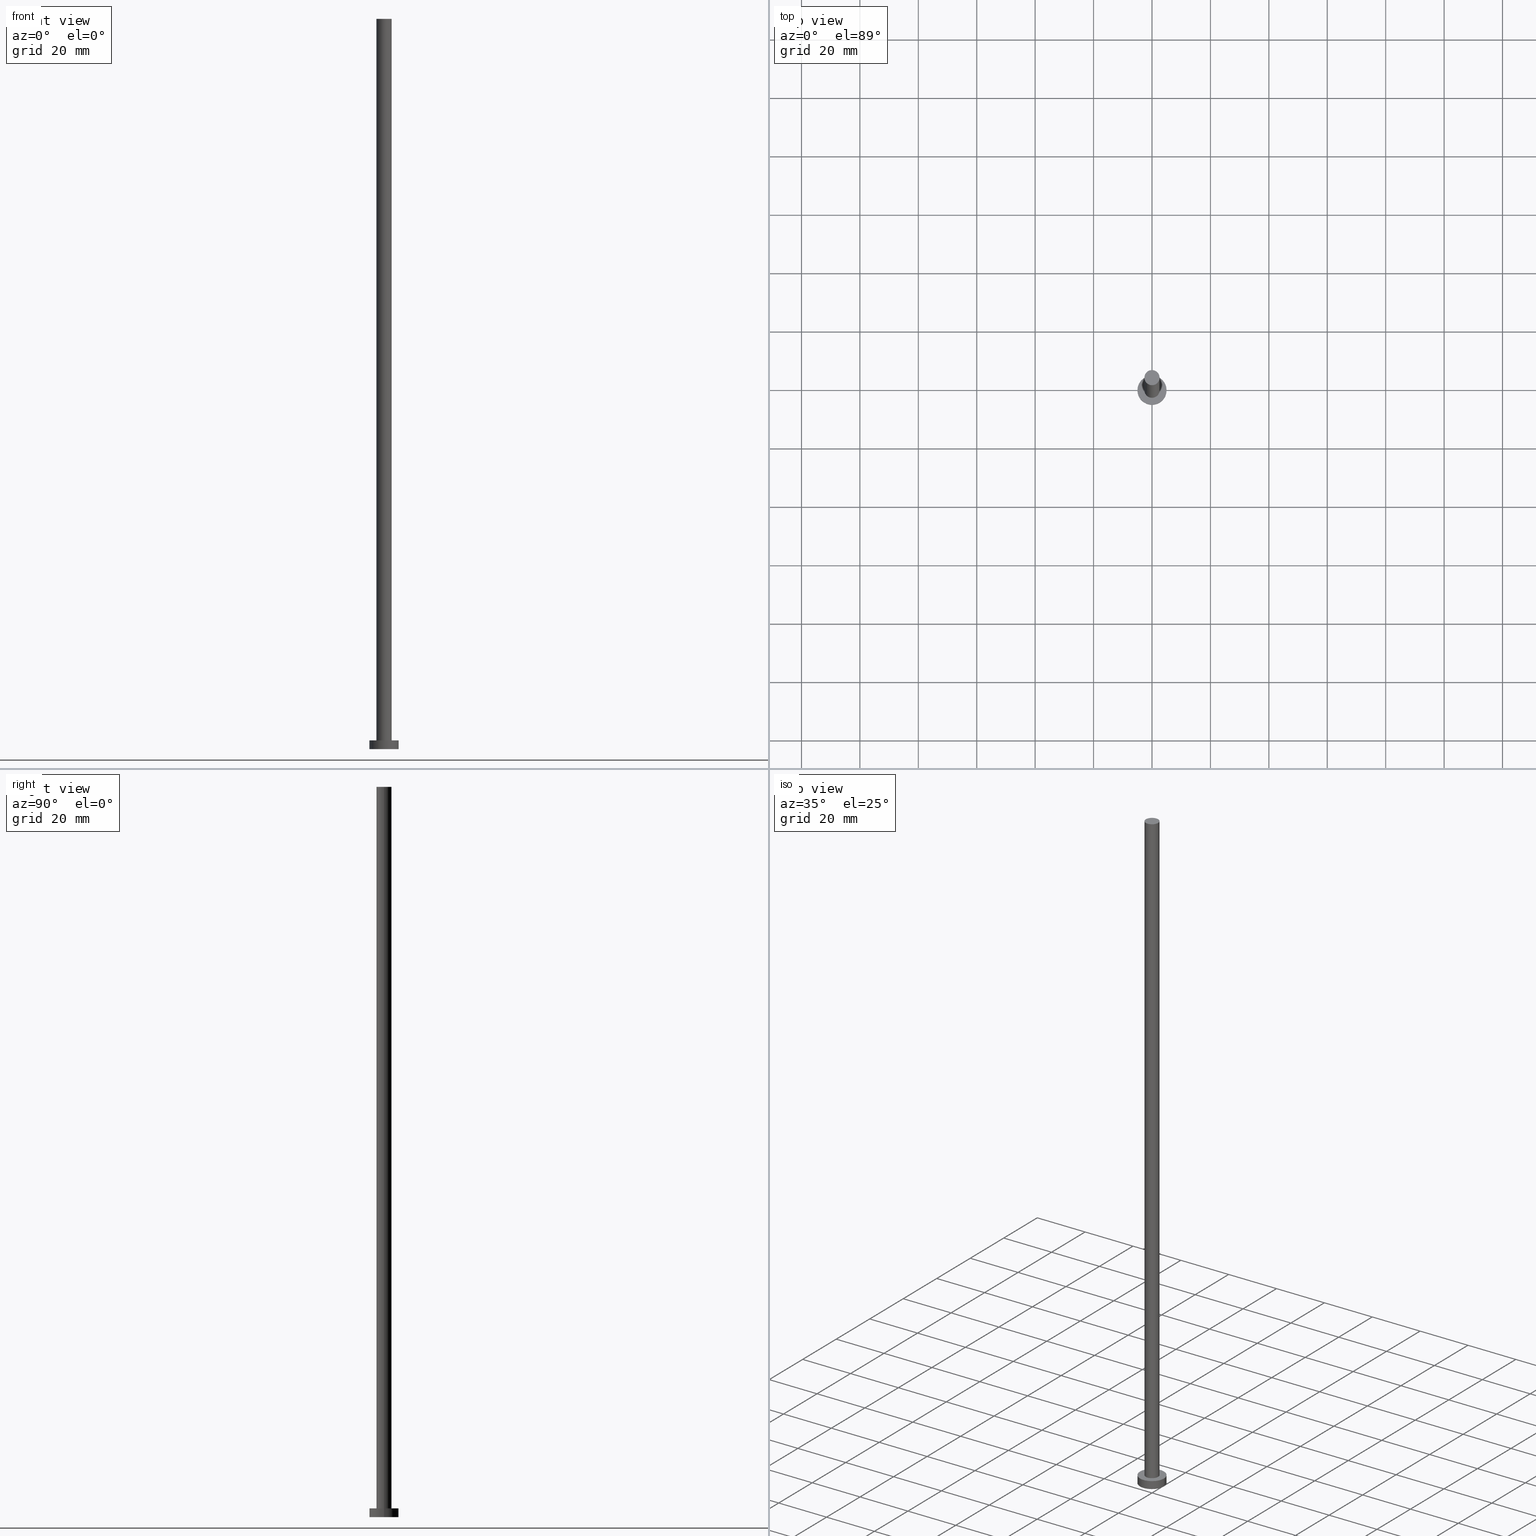
[diagram: canonical four-view strip — front | top / right | iso, engineering-drawing reading convention]
A machine part, canonical four-view strip (front | top / right | iso — engineering-drawing reading convention). The complete STEP part file that produces these views, byte-faithful:
ISO-10303-21;
HEADER;
FILE_DESCRIPTION (( 'STEP AP203' ),
    '1' );
FILE_NAME ('5d42.STEP',
    '2023-02-13T13:24:15',
    ( '' ),
    ( '' ),
    'SwSTEP 2.0',
    'SolidWorks 2019',
    '' );
FILE_SCHEMA (( 'CONFIG_CONTROL_DESIGN' ));
ENDSEC;

DATA;
#1 = LOCAL_TIME ( 14, 24, 15.00000000000000000, #93 ) ;
#2 = CARTESIAN_POINT ( 'NONE',  ( -5.000000000000000000, 0.000000000000000000, 0.000000000000000000 ) ) ;
#3 =( NAMED_UNIT ( * ) SI_UNIT ( $, .STERADIAN. ) SOLID_ANGLE_UNIT ( ) );
#4 = DIRECTION ( 'NONE',  ( 0.000000000000000000, 0.000000000000000000, 1.000000000000000000 ) ) ;
#5 = COORDINATED_UNIVERSAL_TIME_OFFSET ( 1, 0, .AHEAD. ) ;
#6 = ORIENTED_EDGE ( 'NONE', *, *, #64, .T. ) ;
#7 = ADVANCED_FACE ( 'NONE', ( #150 ), #234, .F. ) ;
#8 = PERSON_AND_ORGANIZATION ( #204, #248 ) ;
#9 = VERTEX_POINT ( 'NONE', #253 ) ;
#10 = CIRCLE ( 'NONE', #207, 2.600000000000000089 ) ;
#11 = VERTEX_POINT ( 'NONE', #249 ) ;
#12 = APPROVAL_STATUS ( 'not_yet_approved' ) ;
#13 = ORIENTED_EDGE ( 'NONE', *, *, #125, .T. ) ;
#14 = APPROVAL_STATUS ( 'not_yet_approved' ) ;
#15 = ORIENTED_EDGE ( 'NONE', *, *, #86, .T. ) ;
#16 = CIRCLE ( 'NONE', #251, 2.600000000000000089 ) ;
#17 = PLANE ( 'NONE',  #146 ) ;
#18 = CIRCLE ( 'NONE', #242, 2.600000000000000089 ) ;
#19 = ORIENTED_EDGE ( 'NONE', *, *, #122, .T. ) ;
#20 = ADVANCED_FACE ( 'NONE', ( #173 ), #100, .T. ) ;
#21 = DIRECTION ( 'NONE',  ( -0.000000000000000000, -0.000000000000000000, -1.000000000000000000 ) ) ;
#22 = DIRECTION ( 'NONE',  ( -0.000000000000000000, -0.000000000000000000, -1.000000000000000000 ) ) ;
#23 = DIRECTION ( 'NONE',  ( -0.000000000000000000, -0.000000000000000000, -1.000000000000000000 ) ) ;
#24 = CC_DESIGN_PERSON_AND_ORGANIZATION_ASSIGNMENT ( #209, #48, ( #31 ) ) ;
#25 = CARTESIAN_POINT ( 'NONE',  ( 0.000000000000000000, 0.000000000000000000, 3.000000000000000000 ) ) ;
#26 = DIRECTION ( 'NONE',  ( -0.000000000000000000, -0.000000000000000000, -1.000000000000000000 ) ) ;
#27 = DIRECTION ( 'NONE',  ( 0.000000000000000000, 0.000000000000000000, 1.000000000000000000 ) ) ;
#28 = EDGE_CURVE ( 'NONE', #56, #79, #55, .T. ) ;
#29 = APPLICATION_PROTOCOL_DEFINITION ( 'international standard', 'config_control_design', 1994, #137 ) ;
#30 = CALENDAR_DATE ( 2023, 13, 2 ) ;
#31 = SECURITY_CLASSIFICATION ( '', '', #97 ) ;
#32 = APPROVAL_DATE_TIME ( #67, #46 ) ;
#33 = VECTOR ( 'NONE', #198, 1000.000000000000000 ) ;
#34 = ORIENTED_EDGE ( 'NONE', *, *, #86, .F. ) ;
#35 = LINE ( 'NONE', #104, #92 ) ;
#36 = CARTESIAN_POINT ( 'NONE',  ( 0.000000000000000000, 0.000000000000000000, 250.0000000000000000 ) ) ;
#37 = ADVANCED_FACE ( 'NONE', ( #231 ), #218, .T. ) ;
#38 = CYLINDRICAL_SURFACE ( 'NONE', #152, 2.600000000000000089 ) ;
#39 = CARTESIAN_POINT ( 'NONE',  ( 0.000000000000000000, 0.000000000000000000, 0.000000000000000000 ) ) ;
#40 = CARTESIAN_POINT ( 'NONE',  ( 0.000000000000000000, 0.000000000000000000, 250.0000000000000000 ) ) ;
#41 = DIRECTION ( 'NONE',  ( 0.000000000000000000, 0.000000000000000000, 1.000000000000000000 ) ) ;
#42 = CIRCLE ( 'NONE', #108, 5.000000000000000000 ) ;
#43 =( LENGTH_UNIT ( ) NAMED_UNIT ( * ) SI_UNIT ( .MILLI., .METRE. ) );
#44 = AXIS2_PLACEMENT_3D ( 'NONE', #25, #41, #162 ) ;
#45 = CARTESIAN_POINT ( 'NONE',  ( 0.000000000000000000, 0.000000000000000000, 250.0000000000000000 ) ) ;
#46 = APPROVAL ( #70, 'NEUR�EN�' ) ;
#47 = VECTOR ( 'NONE', #220, 1000.000000000000000 ) ;
#48 = PERSON_AND_ORGANIZATION_ROLE ( 'classification_officer' ) ;
#49 = PERSON_AND_ORGANIZATION ( #204, #248 ) ;
#50 = APPROVAL ( #14, 'NEUR�EN�' ) ;
#51 = PERSON_AND_ORGANIZATION_ROLE ( 'creator' ) ;
#52 = ORIENTED_EDGE ( 'NONE', *, *, #122, .F. ) ;
#53 = CC_DESIGN_APPROVAL ( #245, ( #88 ) ) ;
#54 = EDGE_LOOP ( 'NONE', ( #188, #151 ) ) ;
#55 = LINE ( 'NONE', #219, #33 ) ;
#56 = VERTEX_POINT ( 'NONE', #153 ) ;
#57 = AXIS2_PLACEMENT_3D ( 'NONE', #84, #126, #85 ) ;
#58 = CARTESIAN_POINT ( 'NONE',  ( 5.000000000000000000, 6.123233995736766282E-16, 0.000000000000000000 ) ) ;
#59 = ADVANCED_FACE ( 'NONE', ( #140, #138 ), #17, .T. ) ;
#60 = ORIENTED_EDGE ( 'NONE', *, *, #190, .T. ) ;
#61 = ORIENTED_EDGE ( 'NONE', *, *, #193, .F. ) ;
#62 = CIRCLE ( 'NONE', #57, 5.000000000000000000 ) ;
#63 = CARTESIAN_POINT ( 'NONE',  ( 0.000000000000000000, 0.000000000000000000, 250.0000000000000000 ) ) ;
#64 = EDGE_CURVE ( 'NONE', #79, #244, #42, .T. ) ;
#65 = PERSON_AND_ORGANIZATION_ROLE ( 'design_owner' ) ;
#66 = LINE ( 'NONE', #160, #47 ) ;
#67 = DATE_AND_TIME ( #185, #1 ) ;
#68 = AXIS2_PLACEMENT_3D ( 'NONE', #224, #205, #109 ) ;
#69 = ORIENTED_EDGE ( 'NONE', *, *, #184, .F. ) ;
#70 = APPROVAL_STATUS ( 'not_yet_approved' ) ;
#71 = ORIENTED_EDGE ( 'NONE', *, *, #201, .F. ) ;
#72 = SHAPE_DEFINITION_REPRESENTATION ( #101, #112 ) ;
#73 = DIRECTION ( 'NONE',  ( 0.000000000000000000, 0.000000000000000000, 1.000000000000000000 ) ) ;
#74 = DIRECTION ( 'NONE',  ( 1.000000000000000000, 0.000000000000000000, -0.000000000000000000 ) ) ;
#75 = AXIS2_PLACEMENT_3D ( 'NONE', #106, #4, #83 ) ;
#76 = DIRECTION ( 'NONE',  ( -1.000000000000000000, 0.000000000000000000, 0.000000000000000000 ) ) ;
#77 = FACE_OUTER_BOUND ( 'NONE', #168, .T. ) ;
#78 = EDGE_CURVE ( 'NONE', #11, #252, #35, .T. ) ;
#79 = VERTEX_POINT ( 'NONE', #58 ) ;
#80 = CYLINDRICAL_SURFACE ( 'NONE', #194, 2.600000000000000089 ) ;
#81 = AXIS2_PLACEMENT_3D ( 'NONE', #45, #221, #121 ) ;
#82 = PRODUCT_DEFINITION ( 'NEZN�M�', '', #88, #170 ) ;
#83 = DIRECTION ( 'NONE',  ( 1.000000000000000000, 0.000000000000000000, 0.000000000000000000 ) ) ;
#84 = CARTESIAN_POINT ( 'NONE',  ( 0.000000000000000000, 0.000000000000000000, 3.000000000000000000 ) ) ;
#85 = DIRECTION ( 'NONE',  ( 1.000000000000000000, 0.000000000000000000, 0.000000000000000000 ) ) ;
#86 = EDGE_CURVE ( 'NONE', #11, #103, #10, .T. ) ;
#87 = CARTESIAN_POINT ( 'NONE',  ( 2.600000000000000089, 3.184081677783118191E-16, 3.000000000000000000 ) ) ;
#88 = PRODUCT_DEFINITION_FORMATION_WITH_SPECIFIED_SOURCE ( 'LIBOVOLN�', '', #213, .NOT_KNOWN. ) ;
#89 = PERSON_AND_ORGANIZATION ( #204, #248 ) ;
#90 = ORIENTED_EDGE ( 'NONE', *, *, #193, .T. ) ;
#91 = APPROVAL_DATE_TIME ( #95, #50 ) ;
#92 = VECTOR ( 'NONE', #21, 1000.000000000000000 ) ;
#93 = COORDINATED_UNIVERSAL_TIME_OFFSET ( 1, 0, .AHEAD. ) ;
#94 = AXIS2_PLACEMENT_3D ( 'NONE', #239, #27, #237 ) ;
#95 = DATE_AND_TIME ( #30, #117 ) ;
#96 = ORIENTED_EDGE ( 'NONE', *, *, #28, .T. ) ;
#97 = SECURITY_CLASSIFICATION_LEVEL ( 'unclassified' ) ;
#98 = ORIENTED_EDGE ( 'NONE', *, *, #128, .F. ) ;
#99 = CC_DESIGN_DATE_AND_TIME_ASSIGNMENT ( #114, #110, ( #82 ) ) ;
#100 = CYLINDRICAL_SURFACE ( 'NONE', #255, 5.000000000000000000 ) ;
#101 = PRODUCT_DEFINITION_SHAPE ( 'NONE', 'NONE',  #82 ) ;
#102 = DIRECTION ( 'NONE',  ( 0.000000000000000000, 0.000000000000000000, 1.000000000000000000 ) ) ;
#103 = VERTEX_POINT ( 'NONE', #175 ) ;
#104 = CARTESIAN_POINT ( 'NONE',  ( -2.600000000000000089, 0.000000000000000000, 250.0000000000000000 ) ) ;
#105 = DIRECTION ( 'NONE',  ( -1.000000000000000000, 0.000000000000000000, 0.000000000000000000 ) ) ;
#106 = CARTESIAN_POINT ( 'NONE',  ( 0.000000000000000000, 0.000000000000000000, 3.000000000000000000 ) ) ;
#107 = DIRECTION ( 'NONE',  ( 1.000000000000000000, 0.000000000000000000, 0.000000000000000000 ) ) ;
#108 = AXIS2_PLACEMENT_3D ( 'NONE', #232, #136, #216 ) ;
#109 = DIRECTION ( 'NONE',  ( 1.000000000000000000, 0.000000000000000000, 0.000000000000000000 ) ) ;
#110 = DATE_TIME_ROLE ( 'creation_date' ) ;
#111 = MANIFOLD_SOLID_BREP ( 'P�idat vysunut�m3', #133 ) ;
#112 = ADVANCED_BREP_SHAPE_REPRESENTATION ( '5d42', ( #111, #68 ), #147 ) ;
#113 = CC_DESIGN_APPROVAL ( #46, ( #31 ) ) ;
#114 = DATE_AND_TIME ( #129, #135 ) ;
#115 = ADVANCED_FACE ( 'NONE', ( #77 ), #38, .T. ) ;
#116 = EDGE_LOOP ( 'NONE', ( #174, #96, #6, #61 ) ) ;
#117 = LOCAL_TIME ( 14, 24, 15.00000000000000000, #169 ) ;
#118 = DIRECTION ( 'NONE',  ( -1.000000000000000000, 0.000000000000000000, 0.000000000000000000 ) ) ;
#119 = DIRECTION ( 'NONE',  ( 0.000000000000000000, 0.000000000000000000, 1.000000000000000000 ) ) ;
#120 = CARTESIAN_POINT ( 'NONE',  ( 0.000000000000000000, 0.000000000000000000, 250.0000000000000000 ) ) ;
#121 = DIRECTION ( 'NONE',  ( 1.000000000000000000, 0.000000000000000000, -0.000000000000000000 ) ) ;
#122 = EDGE_CURVE ( 'NONE', #252, #130, #186, .T. ) ;
#123 = DIRECTION ( 'NONE',  ( 0.000000000000000000, 0.000000000000000000, 1.000000000000000000 ) ) ;
#124 =( NAMED_UNIT ( * ) PLANE_ANGLE_UNIT ( ) SI_UNIT ( $, .RADIAN. ) );
#125 = EDGE_CURVE ( 'NONE', #130, #252, #16, .T. ) ;
#126 = DIRECTION ( 'NONE',  ( 0.000000000000000000, 0.000000000000000000, 1.000000000000000000 ) ) ;
#127 = APPROVAL_ROLE ( '' ) ;
#128 = EDGE_CURVE ( 'NONE', #103, #130, #158, .T. ) ;
#129 = CALENDAR_DATE ( 2023, 13, 2 ) ;
#130 = VERTEX_POINT ( 'NONE', #87 ) ;
#131 = EDGE_LOOP ( 'NONE', ( #98, #34, #195, #19 ) ) ;
#132 = CARTESIAN_POINT ( 'NONE',  ( 0.000000000000000000, 0.000000000000000000, 3.000000000000000000 ) ) ;
#133 = CLOSED_SHELL ( 'NONE', ( #115, #20, #37, #59, #7, #172, #155 ) ) ;
#134 = ORIENTED_EDGE ( 'NONE', *, *, #201, .T. ) ;
#135 = LOCAL_TIME ( 14, 24, 15.00000000000000000, #228 ) ;
#136 = DIRECTION ( 'NONE',  ( 0.000000000000000000, 0.000000000000000000, 1.000000000000000000 ) ) ;
#137 = APPLICATION_CONTEXT ( 'configuration controlled 3d designs of mechanical parts and assemblies' ) ;
#138 = FACE_OUTER_BOUND ( 'NONE', #156, .T. ) ;
#139 = CC_DESIGN_PERSON_AND_ORGANIZATION_ASSIGNMENT ( #210, #164, ( #82 ) ) ;
#140 = FACE_BOUND ( 'NONE', #217, .T. ) ;
#141 = CIRCLE ( 'NONE', #94, 5.000000000000000000 ) ;
#142 = CARTESIAN_POINT ( 'NONE',  ( 2.600000000000000089, 3.184081677783118191E-16, 250.0000000000000000 ) ) ;
#143 = APPROVAL_PERSON_ORGANIZATION ( #89, #245, #127 ) ;
#144 = APPLICATION_CONTEXT ( 'configuration controlled 3d designs of mechanical parts and assemblies' ) ;
#145 = DATE_AND_TIME ( #167, #161 ) ;
#146 = AXIS2_PLACEMENT_3D ( 'NONE', #250, #73, #74 ) ;
#147 =( GEOMETRIC_REPRESENTATION_CONTEXT ( 3 ) GLOBAL_UNCERTAINTY_ASSIGNED_CONTEXT ( ( #229 ) ) GLOBAL_UNIT_ASSIGNED_CONTEXT ( ( #43, #124, #3 ) ) REPRESENTATION_CONTEXT ( 'NONE', 'WORKASPACE' ) );
#148 = CC_DESIGN_DATE_AND_TIME_ASSIGNMENT ( #145, #227, ( #31 ) ) ;
#149 = ORIENTED_EDGE ( 'NONE', *, *, #184, .T. ) ;
#150 = FACE_OUTER_BOUND ( 'NONE', #54, .T. ) ;
#151 = ORIENTED_EDGE ( 'NONE', *, *, #64, .F. ) ;
#152 = AXIS2_PLACEMENT_3D ( 'NONE', #120, #23, #105 ) ;
#153 = CARTESIAN_POINT ( 'NONE',  ( 5.000000000000000000, 6.123233995736766282E-16, 3.000000000000000000 ) ) ;
#154 = ORIENTED_EDGE ( 'NONE', *, *, #125, .F. ) ;
#155 = ADVANCED_FACE ( 'NONE', ( #236 ), #179, .T. ) ;
#156 = EDGE_LOOP ( 'NONE', ( #149, #60 ) ) ;
#157 = VECTOR ( 'NONE', #202, 1000.000000000000000 ) ;
#158 = LINE ( 'NONE', #142, #157 ) ;
#159 = CARTESIAN_POINT ( 'NONE',  ( -2.600000000000000089, 0.000000000000000000, 3.000000000000000000 ) ) ;
#160 = CARTESIAN_POINT ( 'NONE',  ( -5.000000000000000000, 0.000000000000000000, 3.000000000000000000 ) ) ;
#161 = LOCAL_TIME ( 14, 24, 15.00000000000000000, #246 ) ;
#162 = DIRECTION ( 'NONE',  ( 1.000000000000000000, 0.000000000000000000, 0.000000000000000000 ) ) ;
#163 = CALENDAR_DATE ( 2023, 13, 2 ) ;
#164 = PERSON_AND_ORGANIZATION_ROLE ( 'creator' ) ;
#165 = DATE_AND_TIME ( #163, #222 ) ;
#166 = ORIENTED_EDGE ( 'NONE', *, *, #128, .T. ) ;
#167 = CALENDAR_DATE ( 2023, 13, 2 ) ;
#168 = EDGE_LOOP ( 'NONE', ( #71, #166, #13, #171 ) ) ;
#169 = COORDINATED_UNIVERSAL_TIME_OFFSET ( 1, 0, .AHEAD. ) ;
#170 = DESIGN_CONTEXT ( 'detailed design', #137, 'design' ) ;
#171 = ORIENTED_EDGE ( 'NONE', *, *, #78, .F. ) ;
#172 = ADVANCED_FACE ( 'NONE', ( #254 ), #80, .T. ) ;
#173 = FACE_OUTER_BOUND ( 'NONE', #116, .T. ) ;
#174 = ORIENTED_EDGE ( 'NONE', *, *, #190, .F. ) ;
#175 = CARTESIAN_POINT ( 'NONE',  ( 2.600000000000000089, 3.184081677783118191E-16, 250.0000000000000000 ) ) ;
#176 = CC_DESIGN_PERSON_AND_ORGANIZATION_ASSIGNMENT ( #49, #51, ( #88 ) ) ;
#177 = CC_DESIGN_SECURITY_CLASSIFICATION ( #31, ( #88 ) ) ;
#178 = EDGE_LOOP ( 'NONE', ( #212, #69, #90, #192 ) ) ;
#179 = PLANE ( 'NONE',  #81 ) ;
#180 = CC_DESIGN_APPROVAL ( #50, ( #82 ) ) ;
#181 = APPLICATION_PROTOCOL_DEFINITION ( 'international standard', 'config_control_design', 1994, #144 ) ;
#182 = PERSON_AND_ORGANIZATION ( #204, #248 ) ;
#183 = MECHANICAL_CONTEXT ( 'NONE', #144, 'mechanical' ) ;
#184 = EDGE_CURVE ( 'NONE', #9, #56, #199, .T. ) ;
#185 = CALENDAR_DATE ( 2023, 13, 2 ) ;
#186 = CIRCLE ( 'NONE', #75, 2.600000000000000089 ) ;
#187 = PERSON_AND_ORGANIZATION ( #204, #248 ) ;
#188 = ORIENTED_EDGE ( 'NONE', *, *, #241, .F. ) ;
#189 = PERSON_AND_ORGANIZATION_ROLE ( 'design_supplier' ) ;
#190 = EDGE_CURVE ( 'NONE', #56, #9, #62, .T. ) ;
#191 = APPROVAL_ROLE ( '' ) ;
#192 = ORIENTED_EDGE ( 'NONE', *, *, #241, .T. ) ;
#193 = EDGE_CURVE ( 'NONE', #9, #244, #66, .T. ) ;
#194 = AXIS2_PLACEMENT_3D ( 'NONE', #63, #26, #203 ) ;
#195 = ORIENTED_EDGE ( 'NONE', *, *, #78, .T. ) ;
#196 = CARTESIAN_POINT ( 'NONE',  ( 0.000000000000000000, 0.000000000000000000, 3.000000000000000000 ) ) ;
#197 = DIRECTION ( 'NONE',  ( 1.000000000000000000, 0.000000000000000000, 0.000000000000000000 ) ) ;
#198 = DIRECTION ( 'NONE',  ( -0.000000000000000000, -0.000000000000000000, -1.000000000000000000 ) ) ;
#199 = CIRCLE ( 'NONE', #44, 5.000000000000000000 ) ;
#200 = CARTESIAN_POINT ( 'NONE',  ( 0.000000000000000000, 0.000000000000000000, 3.000000000000000000 ) ) ;
#201 = EDGE_CURVE ( 'NONE', #103, #11, #18, .T. ) ;
#202 = DIRECTION ( 'NONE',  ( -0.000000000000000000, -0.000000000000000000, -1.000000000000000000 ) ) ;
#203 = DIRECTION ( 'NONE',  ( -1.000000000000000000, 0.000000000000000000, 0.000000000000000000 ) ) ;
#204 = PERSON ( 'NEUR�EN�', 'NEUR�EN�', 'NEUR�EN�', ('NEUR�EN�'), ('NEUR�EN�'), ('NEUR�EN�') ) ;
#205 = DIRECTION ( 'NONE',  ( 0.000000000000000000, 0.000000000000000000, 1.000000000000000000 ) ) ;
#206 = PRODUCT_RELATED_PRODUCT_CATEGORY ( 'detail', '', ( #213 ) ) ;
#207 = AXIS2_PLACEMENT_3D ( 'NONE', #36, #119, #197 ) ;
#208 = APPROVAL_DATE_TIME ( #165, #245 ) ;
#209 = PERSON_AND_ORGANIZATION ( #204, #248 ) ;
#210 = PERSON_AND_ORGANIZATION ( #204, #248 ) ;
#211 = APPROVAL_PERSON_ORGANIZATION ( #187, #46, #240 ) ;
#212 = ORIENTED_EDGE ( 'NONE', *, *, #28, .F. ) ;
#213 = PRODUCT ( '5d42', '5d42', '', ( #183 ) ) ;
#214 = DIRECTION ( 'NONE',  ( -0.000000000000000000, -0.000000000000000000, -1.000000000000000000 ) ) ;
#215 = AXIS2_PLACEMENT_3D ( 'NONE', #132, #214, #76 ) ;
#216 = DIRECTION ( 'NONE',  ( 1.000000000000000000, 0.000000000000000000, 0.000000000000000000 ) ) ;
#217 = EDGE_LOOP ( 'NONE', ( #52, #154 ) ) ;
#218 = CYLINDRICAL_SURFACE ( 'NONE', #215, 5.000000000000000000 ) ;
#219 = CARTESIAN_POINT ( 'NONE',  ( 5.000000000000000000, 6.123233995736766282E-16, 3.000000000000000000 ) ) ;
#220 = DIRECTION ( 'NONE',  ( -0.000000000000000000, -0.000000000000000000, -1.000000000000000000 ) ) ;
#221 = DIRECTION ( 'NONE',  ( 0.000000000000000000, 0.000000000000000000, 1.000000000000000000 ) ) ;
#222 = LOCAL_TIME ( 14, 24, 15.00000000000000000, #5 ) ;
#223 = CC_DESIGN_PERSON_AND_ORGANIZATION_ASSIGNMENT ( #182, #65, ( #213 ) ) ;
#224 = CARTESIAN_POINT ( 'NONE',  ( 0.000000000000000000, 0.000000000000000000, 0.000000000000000000 ) ) ;
#225 = DIRECTION ( 'NONE',  ( 0.000000000000000000, 0.000000000000000000, 1.000000000000000000 ) ) ;
#226 = AXIS2_PLACEMENT_3D ( 'NONE', #39, #102, #233 ) ;
#227 = DATE_TIME_ROLE ( 'classification_date' ) ;
#228 = COORDINATED_UNIVERSAL_TIME_OFFSET ( 1, 0, .AHEAD. ) ;
#229 = UNCERTAINTY_MEASURE_WITH_UNIT (LENGTH_MEASURE( 1.000000000000000082E-05 ), #43, 'distance_accuracy_value', 'NONE');
#230 = EDGE_LOOP ( 'NONE', ( #15, #134 ) ) ;
#231 = FACE_OUTER_BOUND ( 'NONE', #178, .T. ) ;
#232 = CARTESIAN_POINT ( 'NONE',  ( 0.000000000000000000, 0.000000000000000000, 0.000000000000000000 ) ) ;
#233 = DIRECTION ( 'NONE',  ( 1.000000000000000000, 0.000000000000000000, -0.000000000000000000 ) ) ;
#234 = PLANE ( 'NONE',  #226 ) ;
#235 = CC_DESIGN_PERSON_AND_ORGANIZATION_ASSIGNMENT ( #8, #189, ( #88 ) ) ;
#236 = FACE_OUTER_BOUND ( 'NONE', #230, .T. ) ;
#237 = DIRECTION ( 'NONE',  ( 1.000000000000000000, 0.000000000000000000, 0.000000000000000000 ) ) ;
#238 = DIRECTION ( 'NONE',  ( 1.000000000000000000, 0.000000000000000000, 0.000000000000000000 ) ) ;
#239 = CARTESIAN_POINT ( 'NONE',  ( 0.000000000000000000, 0.000000000000000000, 0.000000000000000000 ) ) ;
#240 = APPROVAL_ROLE ( '' ) ;
#241 = EDGE_CURVE ( 'NONE', #244, #79, #141, .T. ) ;
#242 = AXIS2_PLACEMENT_3D ( 'NONE', #40, #123, #107 ) ;
#243 = PERSON_AND_ORGANIZATION ( #204, #248 ) ;
#244 = VERTEX_POINT ( 'NONE', #2 ) ;
#245 = APPROVAL ( #12, 'NEUR�EN�' ) ;
#246 = COORDINATED_UNIVERSAL_TIME_OFFSET ( 1, 0, .AHEAD. ) ;
#247 = APPROVAL_PERSON_ORGANIZATION ( #243, #50, #191 ) ;
#248 = ORGANIZATION ( 'NEUR�EN�', 'NEUR�EN�', '' ) ;
#249 = CARTESIAN_POINT ( 'NONE',  ( -2.600000000000000089, 0.000000000000000000, 250.0000000000000000 ) ) ;
#250 = CARTESIAN_POINT ( 'NONE',  ( 0.000000000000000000, 0.000000000000000000, 3.000000000000000000 ) ) ;
#251 = AXIS2_PLACEMENT_3D ( 'NONE', #200, #225, #238 ) ;
#252 = VERTEX_POINT ( 'NONE', #159 ) ;
#253 = CARTESIAN_POINT ( 'NONE',  ( -5.000000000000000000, 0.000000000000000000, 3.000000000000000000 ) ) ;
#254 = FACE_OUTER_BOUND ( 'NONE', #131, .T. ) ;
#255 = AXIS2_PLACEMENT_3D ( 'NONE', #196, #22, #118 ) ;
ENDSEC;
END-ISO-10303-21;
